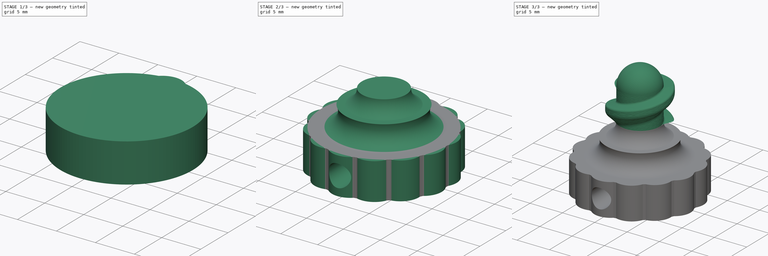
[diagram: build sequence overview — one tinted view per stage of 3, left to right]
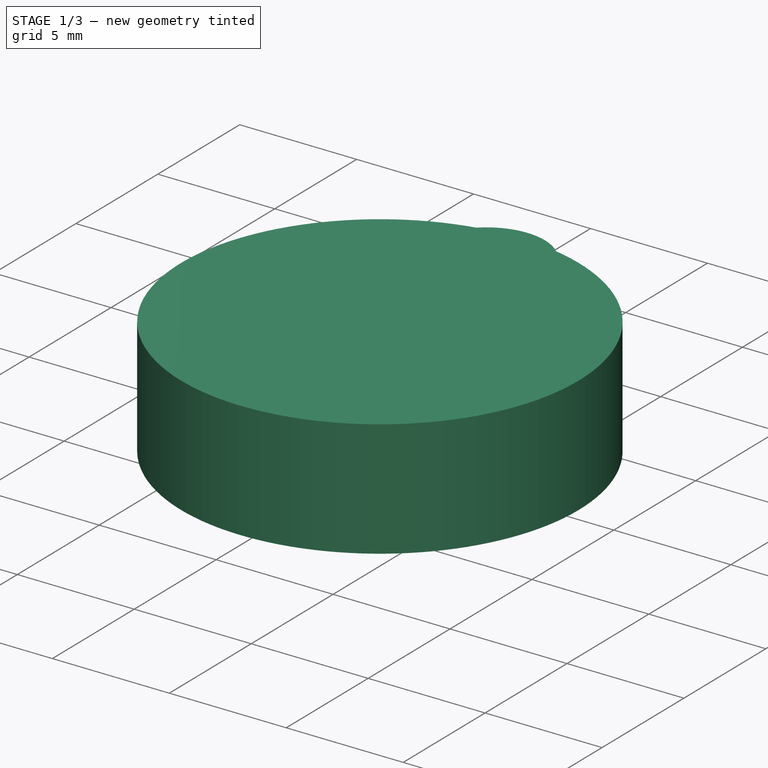
[diagram: stage 1 of 3 — iso view after this stage's code; geometry added in this stage tinted green]
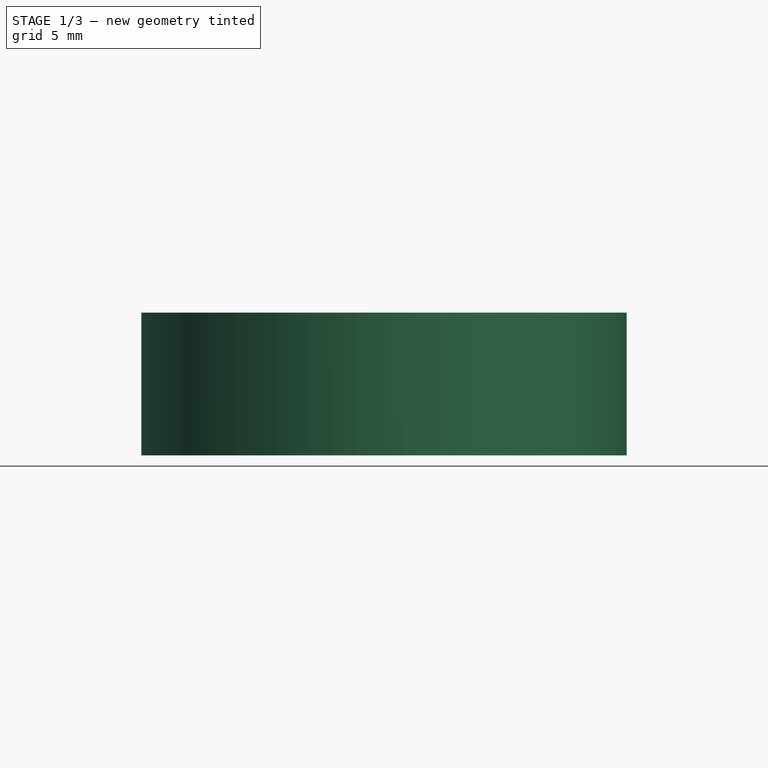
[diagram: stage 1 of 3 — front view after this stage's code; geometry added in this stage tinted green]
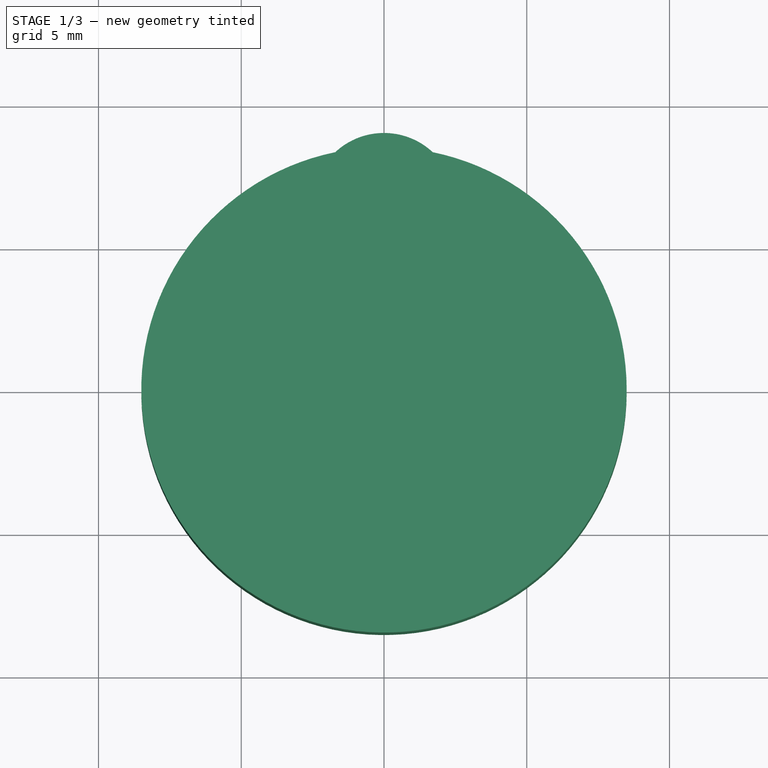
[diagram: stage 1 of 3 — top view after this stage's code; geometry added in this stage tinted green]
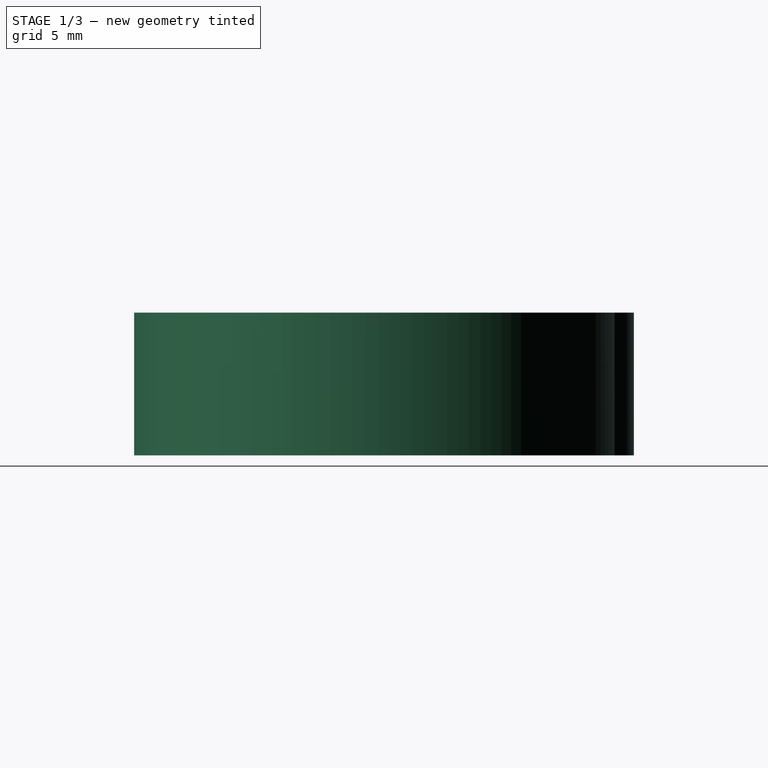
[diagram: stage 1 of 3 — right view after this stage's code; geometry added in this stage tinted green]
FCSTD DOCUMENT  (FreeCAD 0.20R29177 +426 (Git))
Label: fartbag_screw_bottle_thread
License: All rights reserved
LicenseURL: http://en.wikipedia.org/wiki/All_rights_reserved
objects: Sketcher::SketchObject×6, PartDesign::Pad×2, PartDesign::Revolution×2, PartDesign::PolarPattern×1, PartDesign::Pocket×1, Part::Part2DObjectPython×1, Part::Helix×1, PartDesign::AdditivePipe×1, PartDesign::Body×1
note: 22 computed .brp shape members not serialized (recipe doc carries the construction recipe); baked Part::Feature solids carry a one-line shape summary decoded from their .brp

FEATURE [Sketcher::SketchObject] Sketch
  FullyConstrained = true
  MapMode = 5
  Support = -> [XY_Plane]
  sketch-geometry (1):
    g0: Circle CenterX=0 CenterY=0 CenterZ=0 NormalX=0 NormalY=0 NormalZ=1 AngleXU=0 Radius=8.5
  constraints (2):
    c: Coincident(g0,g-1)
    c: Diameter(g0) = 17
FEATURE [PartDesign::Pad] Pad
  Direction = (0,0,1)
  Length = 5
  Length2 = 10
  Profile = -> Sketch
  ReferenceAxis = -> Sketch [N_Axis]
  Type = 0
FEATURE [Sketcher::SketchObject] Sketch001
  ExternalGeometry = -> [Pad]
  FullyConstrained = true
  MapMode = 5
  Placement = pos=(0,0,5) rot=(0,0,1;0rad)
  Support = -> [Pad]
  sketch-geometry (5):
    g0: Circle CenterX=0 CenterY=6.5 CenterZ=0 NormalX=0 NormalY=0 NormalZ=1 AngleXU=0 Radius=2.5
    g1: GeomPoint X=0 Y=9 Z=0
    g2: GeomPoint X=0 Y=8.5 Z=0
    g3: ArcOfCircle CenterX=0 CenterY=6.5 CenterZ=0 NormalX=0 NormalY=0 NormalZ=1 AngleXU=0 Radius=2.5 StartAngle=0.819448 EndAngle=2.32214
    g4: ArcOfCircle CenterX=0 CenterY=0 CenterZ=0 NormalX=0 NormalY=0 NormalZ=1 AngleXU=0 Radius=8.5 StartAngle=1.36865 EndAngle=1.77294
  constraints (13):
    c: PointOnObject(g0,g-2)
    c: PointOnObject(g1,g0)
    c: PointOnObject(g2,g-3)
    c: PointOnObject(g2,g-2)
    c: PointOnObject(g1,g-2)
    c: DistanceY(g2,g1) = 0.5
    c: Diameter(g0) = 5
    c: Coincident(g3,g0)
    c: PointOnObject(g3,g0)
    c: PointOnObject(g3,g-3)
    c: Coincident(g4,g-3)
    c: Coincident(g4,g3)
    c: Coincident(g4,g3)
FEATURE [PartDesign::Pad] Pad001
  BaseFeature = -> Pad
  Direction = (0,0,1)
  Length = 2.5
  Length2 = 10
  Profile = -> Sketch001
  ReferenceAxis = -> Sketch001 [N_Axis]
  Reversed = true
  Type = 3
  UpToFace = -> Pad [Face2]
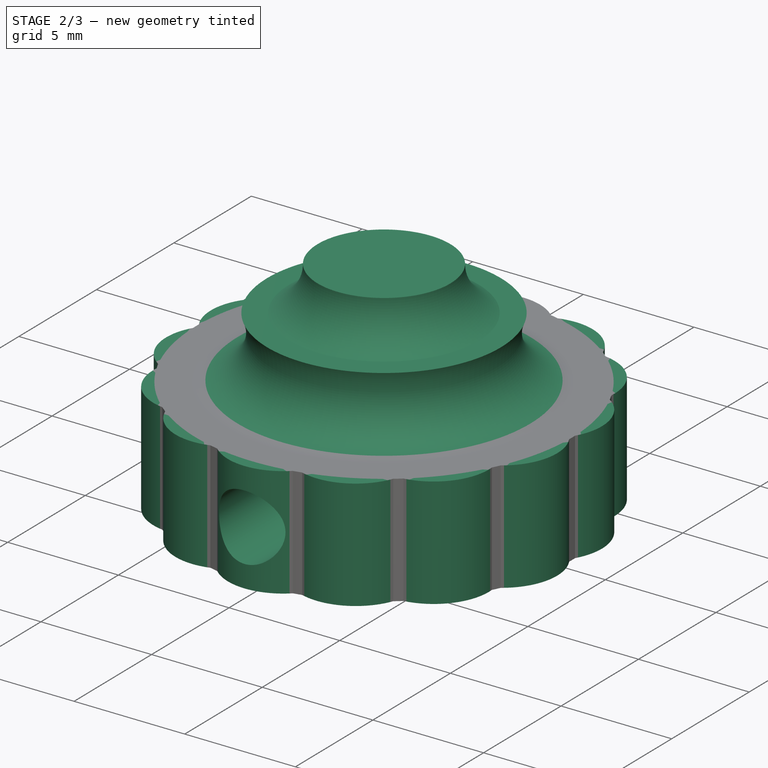
[diagram: stage 2 of 3 — iso view after this stage's code; geometry added in this stage tinted green]
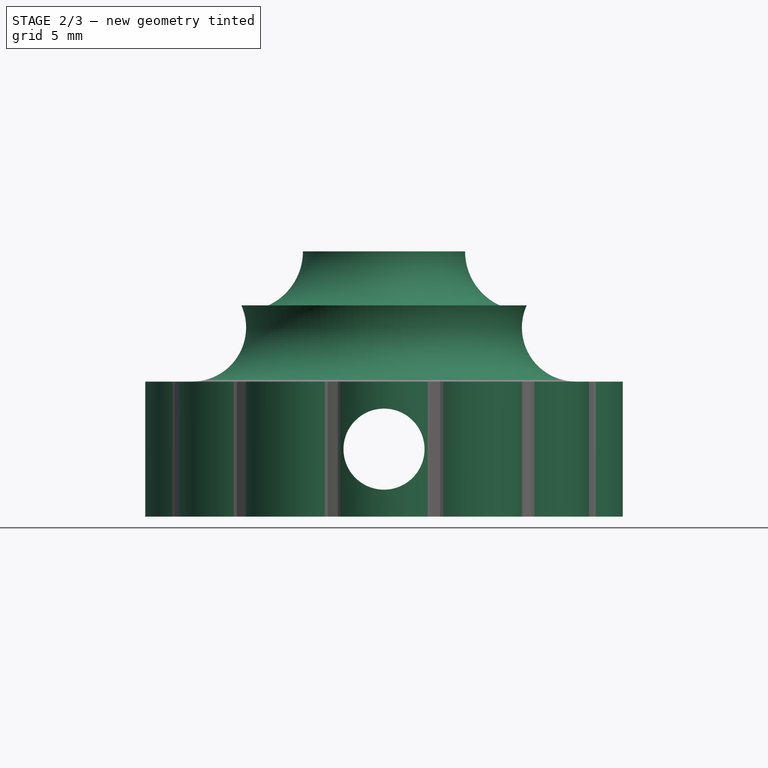
[diagram: stage 2 of 3 — front view after this stage's code; geometry added in this stage tinted green]
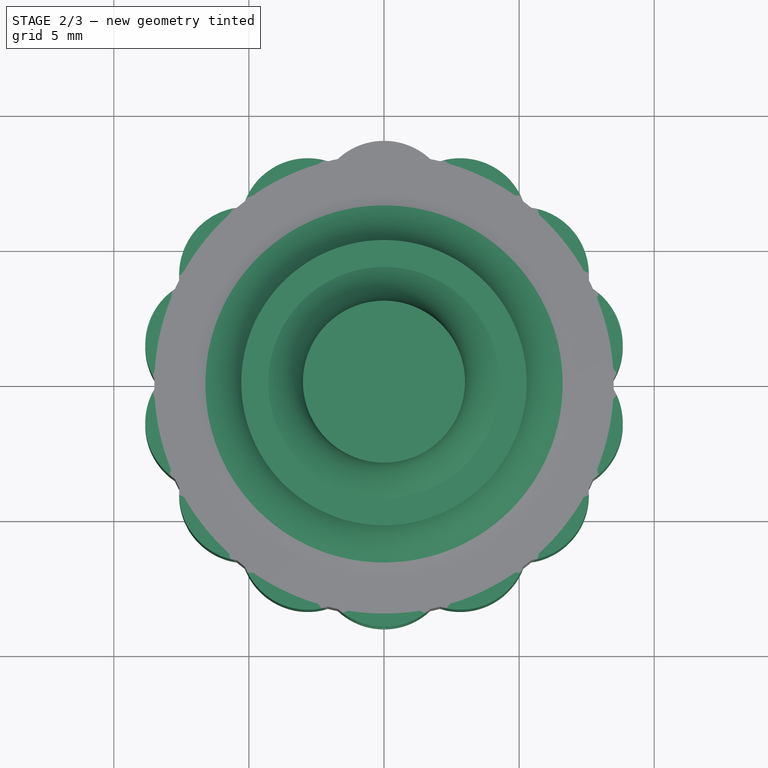
[diagram: stage 2 of 3 — top view after this stage's code; geometry added in this stage tinted green]
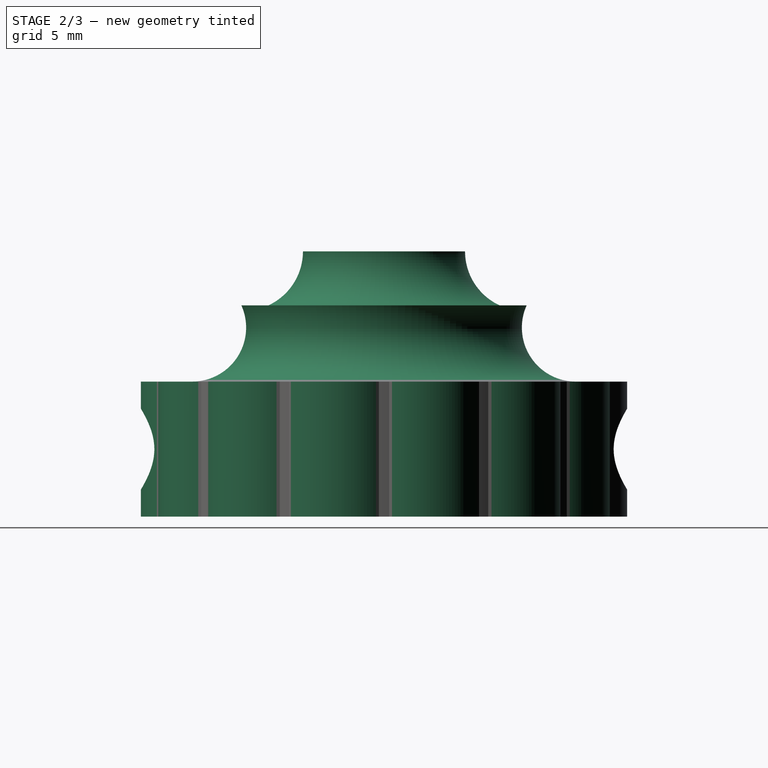
[diagram: stage 2 of 3 — right view after this stage's code; geometry added in this stage tinted green]
FEATURE [PartDesign::PolarPattern] PolarPattern
  Angle = 360
  Axis = -> Sketch001 [N_Axis]
  BaseFeature = -> Pad001
  Occurrences = 14
  Originals = -> [Pad001]
FEATURE [Sketcher::SketchObject] Sketch003
  FullyConstrained = true
  MapMode = 5
  Placement = pos=(0,0,5) rot=(0,0,1;0rad)
  Support = -> [PolarPattern]
  sketch-geometry (1):
    g0: Circle CenterX=0 CenterY=0 CenterZ=0 NormalX=0 NormalY=0 NormalZ=1 AngleXU=0 Radius=6
  constraints (2):
    c: Coincident(g0,g-1)
    c: Diameter(g0) = 12
FEATURE [Sketcher::SketchObject] Sketch004
  ExternalGeometry = -> [PolarPattern]
  FullyConstrained = true
  MapMode = 5
  Placement = pos=(0,0,0) rot=(1,0,0;1.5708rad)
  Support = -> [XZ_Plane]
  sketch-geometry (14):
    g0: LineSegment StartX=0 StartY=7.5 StartZ=0 EndX=7.10405 EndY=7.5 EndZ=0
    g1: LineSegment StartX=7.10405 StartY=5 StartZ=0 EndX=0 EndY=5 EndZ=0
    g2: LineSegment StartX=0 StartY=5 StartZ=0 EndX=0 EndY=7.5 EndZ=0
    g3: LineSegment StartX=7.10405 StartY=7.5 StartZ=0 EndX=7.10405 EndY=5 EndZ=0
    g4: LineSegment StartX=0 StartY=6.25 StartZ=0 EndX=5.25 EndY=6.25 EndZ=0
    g5: LineSegment StartX=0 StartY=5 StartZ=0 EndX=7.10405 EndY=5 EndZ=0
    g6: ArcOfCircle CenterX=7.10405 CenterY=7 CenterZ=0 NormalX=0 NormalY=0 NormalZ=1 AngleXU=0 Radius=2 StartAngle=2.7183 EndAngle=4.71239
    g7: LineSegment StartX=0 StartY=7.82153 StartZ=0 EndX=5.28057 EndY=7.82153 EndZ=0
    g8: LineSegment StartX=0 StartY=7.82153 StartZ=0 EndX=0 EndY=5 EndZ=0
    g9: LineSegment StartX=5.28057 StartY=7.82153 StartZ=0 EndX=4.28057 EndY=7.82153 EndZ=0
    g10: LineSegment StartX=0 StartY=9.82153 StartZ=0 EndX=3 EndY=9.82153 EndZ=0
    g11: LineSegment StartX=0 StartY=9.82153 StartZ=0 EndX=0 EndY=7.82153 EndZ=0
    g12: ArcOfCircle CenterX=5.20209 CenterY=9.82153 CenterZ=0 NormalX=0 NormalY=0 NormalZ=1 AngleXU=0 Radius=2.20209 StartAngle=3.14159 EndAngle=4.28062
    g13: LineSegment StartX=7.10405 StartY=7.5 StartZ=0 EndX=5.28057 EndY=7.82153 EndZ=0
  constraints (40):
    c: Coincident(g1,g2)
    c: Coincident(g2,g0)
    c: Horizontal(g0)
    c: Horizontal(g1)
    c: Vertical(g2)
    c: PointOnObject(g1,g-3)
    c: DistanceY(g1,g0) = 2.5
    c: Vertical(g3)
    c: Coincident(g1,g3)
    c: Horizontal(g4)
    c: Symmetric(g0,g1,g4)
    c: DistanceX(g4,g4) = 5.25
    c: Coincident(g5,g1)
    c: Coincident(g3,g0)
    c: DistanceX(g0,g0) = 7.10405
    c: PointOnObject(g0,g-2)
    c: PointOnObject(g7,g2)
    c: Coincident(g7,g6)
    c: Horizontal(g7)
    c: Radius(g6) = 2
    c: PointOnObject(g4,g6)
    c: Tangent(g6,g5) = -1.5708
    c: Coincident(g1,g5)
    c: Coincident(g8,g7)
    c: Coincident(g8,g5)
    c: Coincident(g9,g6)
    c: PointOnObject(g9,g7)
    c: DistanceX(g9,g9) = 1
    c: Horizontal(g10)
    c: PointOnObject(g10,g-2)
    c: DistanceX(g10,g10) = 3
    c: Coincident(g11,g10)
    c: Coincident(g11,g8)
    c: DistanceY(g11,g11) = 2
    c: Coincident(g12,g10)
    c: Coincident(g12,g9)
    c: Perpendicular(g12,g10)
    c: Coincident(g13,g0)
    c: Coincident(g13,g6)
    c: Angle(g13,g3) = 1.74533
FEATURE [Sketcher::SketchObject] Sketch006
  FullyConstrained = true
  MapMode = 5
  Placement = pos=(0,0,0) rot=(1,0,0;1.5708rad)
  Support = -> [XZ_Plane]
  sketch-geometry (2):
    g0: Circle CenterX=0 CenterY=2.5 CenterZ=0 NormalX=0 NormalY=0 NormalZ=1 AngleXU=0 Radius=1.5
    g1: GeomPoint X=0 Y=5 Z=0
  constraints (4):
    c: PointOnObject(g0,g-2)
    c: Symmetric(g1,g-1,g0)
    c: Diameter(g0) = 3
    c: DistanceY(g-1,g1) = 5
FEATURE [PartDesign::Pocket] Pocket
  BaseFeature = -> PolarPattern
  Direction = (0,1,2e-16)
  Length = 0
  Length2 = 5
  Midplane = true
  Profile = -> Sketch006
  ReferenceAxis = -> Sketch006 [N_Axis]
  Type = 1
FEATURE [PartDesign::Revolution] Revolution
  Angle = 360
  Axis = (0,-2e-16,1)
  Base = (0,0,0)
  BaseFeature = -> Pocket
  Profile = -> Sketch004
  ReferenceAxis = -> Sketch004 [V_Axis]
  Reversed = true
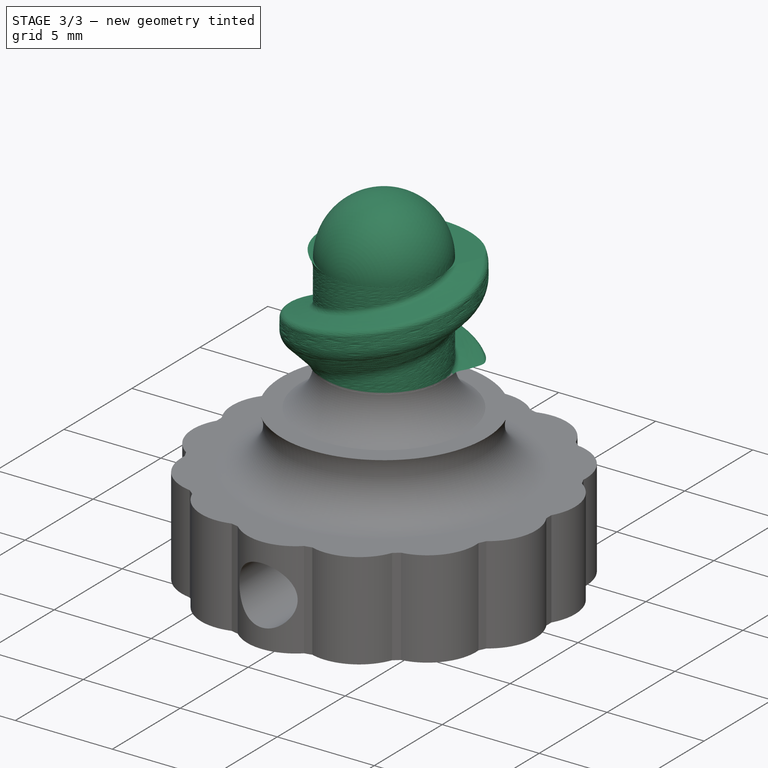
[diagram: stage 3 of 3 — iso view after this stage's code; geometry added in this stage tinted green]
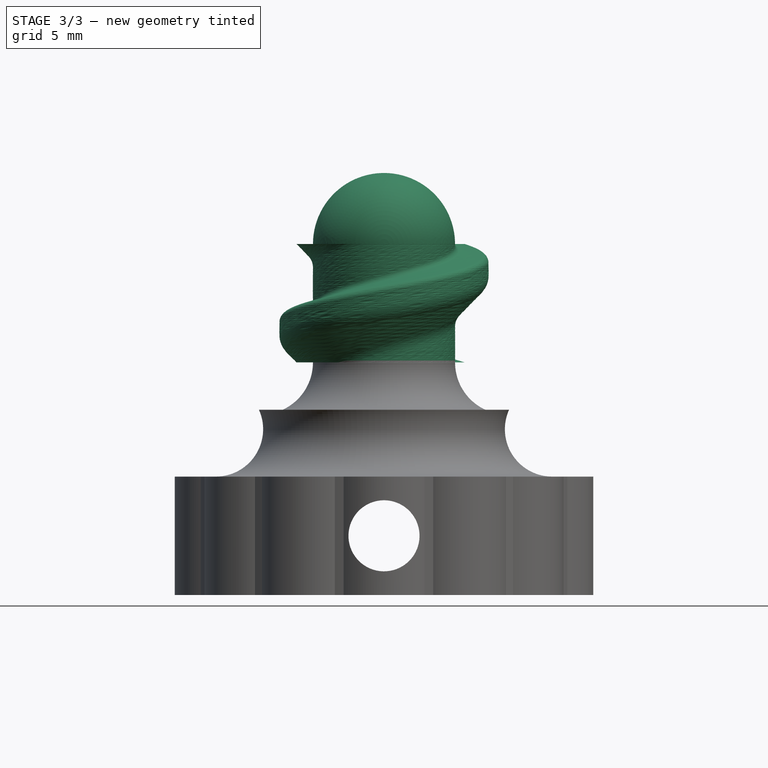
[diagram: stage 3 of 3 — front view after this stage's code; geometry added in this stage tinted green]
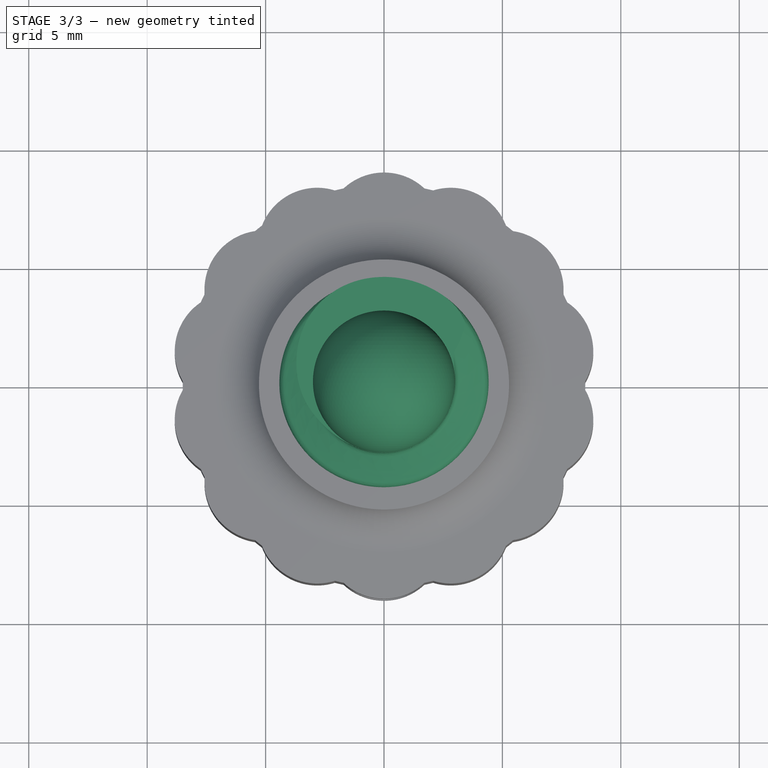
[diagram: stage 3 of 3 — top view after this stage's code; geometry added in this stage tinted green]
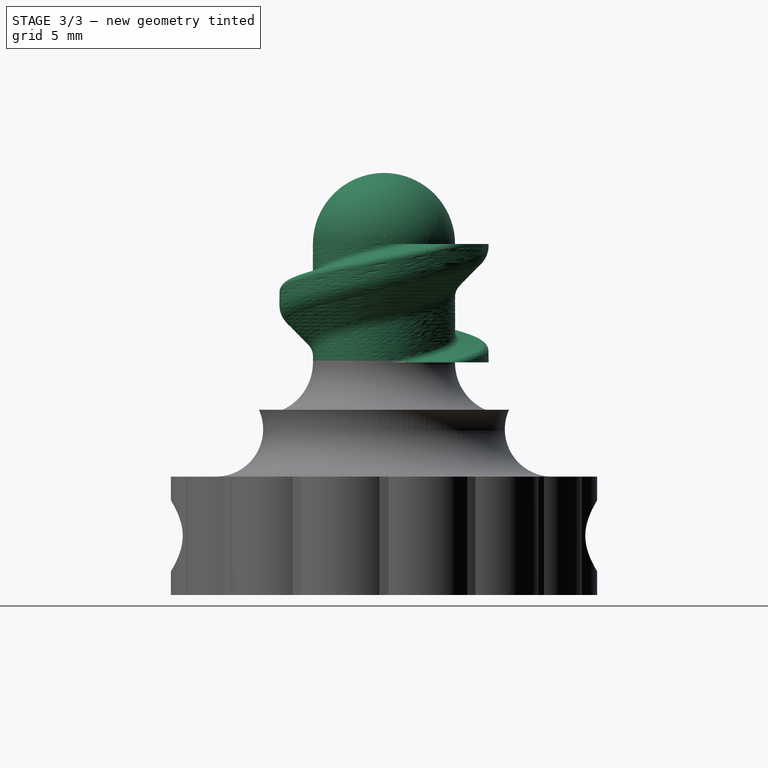
[diagram: stage 3 of 3 — right view after this stage's code; geometry added in this stage tinted green]
FEATURE [Part::Part2DObjectPython] Bottle_M_ThreadProfile  # Draft 2D object (typed FeaturePython)
  Area = 41.1253
  Closed = true
  Continuity = C2
  Height = 5
  Helix = Helix
  Instructions = Expand this with the ... button to view instructions | Sweep this object along a helix of the same pitch to produce your thread. | It is recommended to make the helix in the ThreadProfile workbench. | If there is an active Body the ThreadProfile object will be put into it.,If not it can be dragged and dropped into the body later. | If there is an active Body when the helix is made there will be made a ShapeBinder for it | For internal threads you will need to cut the Sweep object out of a cylinder, or if using Part Design sweep it as a Subtractive Pipe. | Always use Frenet mode | I have provided some presets, but it is possible there could be some errors.  Double check for mission critical applications. | Also, the tolerances might be different from what you wish to have.  I believe the internal minor diameters are all minimum and the external are all maximum.
  InternalOrExternal = 1
  MakeFace = true
  MapMode = 5
  MinorDiameter = 6
  Parameterization = 1
  Pitch = 5
  Placement = pos=(0,-2.2e-15,9.82153) rot=(0,0,1;0rad)
  Points = (120) [(2.99622,0.157244,0),(2.98787,0.314478,0),(2.97704,0.472183,0),(2.96507,0.631149,0),(2.9524,0.792246,0),(2.94182,0.957278,0),(2.94093,1.13064,0),+113 more]
  Presets = 0
  Quality = 6
  Support = -> [Revolution]
  ThreadCount = 1
  Variants = 0
  Version = 1.85
  external2S_data = [-0.00461051,-0.00886426,-0.0128148,-0.0165028,-0.0199596,-0.0232105,-0.0262759,-0.0291725,-0.0319145,-0.0345137,-0.0369805,-0.0393235,-0.0415505,-0.0436681,-0.0456823,-0.0475981,-0.0494204,-0.0511532,-0.0528003,-0.0543649,-0.0558502,+698 more]
  external3S_data = [-0.00677828,-0.0128149,-0.0182584,-0.0232106,-0.0277444,-0.0319145,-0.0357632,-0.0393236,-0.0426227,-0.0456823,-0.0485208,-0.0511533,-0.0535928,-0.0558503,-0.0579353,-0.059856,-0.0616195,-0.0632319,-0.0646984,-0.0660239,-0.0672123,+698 more]
  external45_data = [-0.00137363,-0.00271738,-0.00403219,-0.00531893,-0.00657844,-0.00781148,-0.00901878,-0.010201,-0.0113589,-0.012493,-0.0136039,-0.0146921,-0.0157583,-0.0168028,-0.0178261,-0.0188288,-0.0198112,-0.0207738,-0.0217169,-0.0226409,-0.0235462,+698 more]
  external_data = [6.8683e-05,0.000137366,0.000212133,0.000297079,0.000434727,0.000654671,0.000874565,0.00109436,0.00135915,0.00172112,0.00208281,0.0024438,0.00285056,0.00336131,0.0038717,0.00438141,0.0049559,0.00562874,0.00630075,0.00697193,0.00775661,+698 more]
  internal2S_data = [0,0,0,0,0,0,0,0,0,0,0,0,0,0,0,0,0,0,0,0,0,0,0,0,0,0,0,0,0,0,0,0,0,0,0,0,0,0,0,0,0,0,0,0,0,0,0,0,0,0,0,0,0,0,0,0,0,0,0,0,0,0,0,0,0,0,0,0,0,0,0,0,0,0,0,0,0,0,0,0,0,0,0,0,0,0,0,0,0,0,0.00481128,0.00962256,0.0144338,0.0192451,0.0240564,+624 more]
  internal3S_data = [0,0,0,0,0,0,0,0,0,0,0,0,0,0,0,0,0,0,0,0,0,0,0,0,0,0,0,0,0,0,0,0,0,0,0,0,0,0,0,0,0,0,0,0,0,0,0,0,0,0,0,0,0,0,0,0,0,0,0,0,0.00721688,0.0144338,0.0216506,0.0288675,0.0360844,0.0433013,0.0505181,0.057735,0.0649519,0.0721688,0.0793857,0.0866025,+647 more]
  internal45_data = [0,0,0,0,0,0,0,0,0,0,0,0,0,0,0,0,0,0,0,0,0,0,0,0,0,0,0,0,0,0,0,0,0,0,0,0,0,0,0,0,0,0,0,0,0,0,0,0,0,0,0,0,0,0,0,0,0,0,0,0,0,0,0,0,0,0,0,0,0,0,0,0,0,0,0,0,0,0,0,0,0,0,0,0,0,0,0,0,0,0,0,0,0,0,0,0,0,0,0,0,0,0,0,0,0,0,0,0,0,0,0,0,0,0,0,0,0,0,0,0,+599 more]
  internal_data = [6.8683e-05,0.000137366,0.000212133,0.000297079,0.000434727,0.000654671,0.000874565,0.00109436,0.00135915,0.00172112,0.00208281,0.0024438,0.00285056,0.00336131,0.0038717,0.00438141,0.0049559,0.00562874,0.00630075,0.00697193,0.00775661,+698 more]
  preset_names = Bottle presets | 13-SP415(M) 2.1166666666666667 | 15-SP415(M) 2.1166666666666667 | 18-SP400(M) 3.175 | 20-SP400(M) 3.175 | 22-SP400(M) 3.175 | 24-SP400(M) 3.175 | 28-SP400(M) 4.233333333333333 | 30-SP400(M) 4.233333333333333 | 33-SP400(M) 4.233333333333333 | 35-SP400(M) 4.233333333333333 | 38-SP400(M) 4.233333333333333 | 40-SP400(M) 4.233333333333333 | 43-SP400(M) 4.233333333333333 | 45-SP400(M) 4.233333333333333 | 48-SP400(M) 4.233333333333333 | 51-SP400(M) 4.233333333333333 | 53-SP400(M) 4.233333333333333 | 58-SP400(M) 4.233333333333333 | 60-SP400(M) 4.233333333333333 | 63-SP400(M) 4.233333333333333 | 66-SP400(M) 4.233333333333333 | 70-SP400(M) 4.233333333333333 | 75-SP400(M) 4.233333333333333 | 77-SP400(M) 4.233333333333333 | 83-SP400(M) 5.08 | 89-SP400(M) 5.08 | 100-SP400(M) 5.08 | 110-SP400(M) 5.08 | 120-SP400(M) 5.08
  presets_data = [0,0,0,2.11667,11.53,11.78,2.11667,13.23,13.48,3.175,15.75,16,3.175,17.75,18,3.175,19.76,20.01,3.175,21.74,21.99,4.23333,25.25,25.5,4.23333,26.23,26.48,4.23333,29.74,29.99,4.23333,32.25,32.5,4.23333,35.1,35.35,4.23333,37.75,38,4.23333,39.62,+49 more]
FEATURE [Part::Helix] Helix
  Angle = 0
  AttacherType = Attacher::AttachEngine3D
  Height = 5
  LocalCoord = 0
  MapMode = 5
  Pitch = 5
  Placement = pos=(0,-2.2e-15,9.82153) rot=(0,0,1;0rad)
  Radius = 1
  SegmentLength = 0
  Style = 0
  Support = -> [Revolution]
  expr: AttachmentOffset = Bottle_M_ThreadProfile.AttachmentOffset
  expr: Height = Bottle_M_ThreadProfile.ThreadCount * Bottle_M_ThreadProfile.Pitch
  expr: MapMode = Bottle_M_ThreadProfile.MapMode
  expr: MapPathParameter = Bottle_M_ThreadProfile.MapPathParameter
  expr: MapReversed = Bottle_M_ThreadProfile.MapReversed
  expr: Pitch = Bottle_M_ThreadProfile.Pitch
  expr: Support = Bottle_M_ThreadProfile.Support
FEATURE [PartDesign::AdditivePipe] AdditivePipe
  AuxilleryCurvelinear = true
  AuxillerySpineTangent = false
  BaseFeature = -> Revolution
  Binormal = (0,0,0)
  Mode = 2
  Profile = -> Bottle_M_ThreadProfile
  Spine = -> Helix
  SpineTangent = false
  Transformation = 0
  Transition = 0
FEATURE [Sketcher::SketchObject] Sketch005
  FullyConstrained = true
  MapMode = 5
  Placement = pos=(1.10304e-05,1.33e-13,14.8215) rot=(0,1,0;1e-06rad)
  Support = -> [AdditivePipe]
  sketch-geometry (3):
    g0: Circle CenterX=0 CenterY=0 CenterZ=0 NormalX=0 NormalY=0 NormalZ=1 AngleXU=0 Radius=3
    g1: LineSegment StartX=0 StartY=3 StartZ=0 EndX=0 EndY=-3 EndZ=0
    g2: ArcOfCircle CenterX=0 CenterY=0 CenterZ=0 NormalX=0 NormalY=0 NormalZ=1 AngleXU=0 Radius=3 StartAngle=4.71239 EndAngle=7.85398
  constraints (10):
    c: Coincident(g0,g-1)
    c: Diameter(g0) = 6
    c: PointOnObject(g1,g0)
    c: PointOnObject(g1,g0)
    c: Vertical(g1)
    c: PointOnObject(g1,g-2)
    c: Coincident(g2,g0)
    c: PointOnObject(g2,g-2)
    c: PointOnObject(g2,g-2)
    c: PointOnObject(g2,g0)
FEATURE [PartDesign::Revolution] Revolution001
  Angle = 180
  Axis = (0,1,-9e-15)
  Base = (1.10304e-05,1.33e-13,14.8215)
  BaseFeature = -> AdditivePipe
  Profile = -> Sketch005
  ReferenceAxis = -> Sketch005 [V_Axis]
  Reversed = true
FEATURE [PartDesign::Body] Body
  Group = -> [Sketch,Pad,Sketch001,Pad001,PolarPattern,Pocket,Sketch003,Revolution,Bottle_M_ThreadProfile,Helix,Sketch004,AdditivePipe,Sketch005,Revolution001,Sketch006]
  Origin = -> Origin
  Tip = -> Revolution001
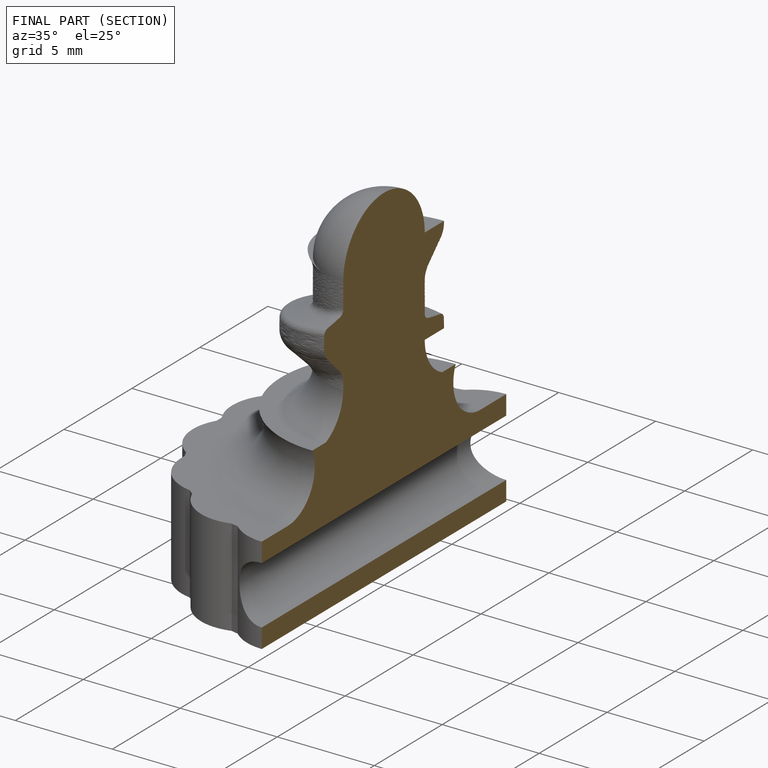
[diagram: finished part — half-section view (interior)]
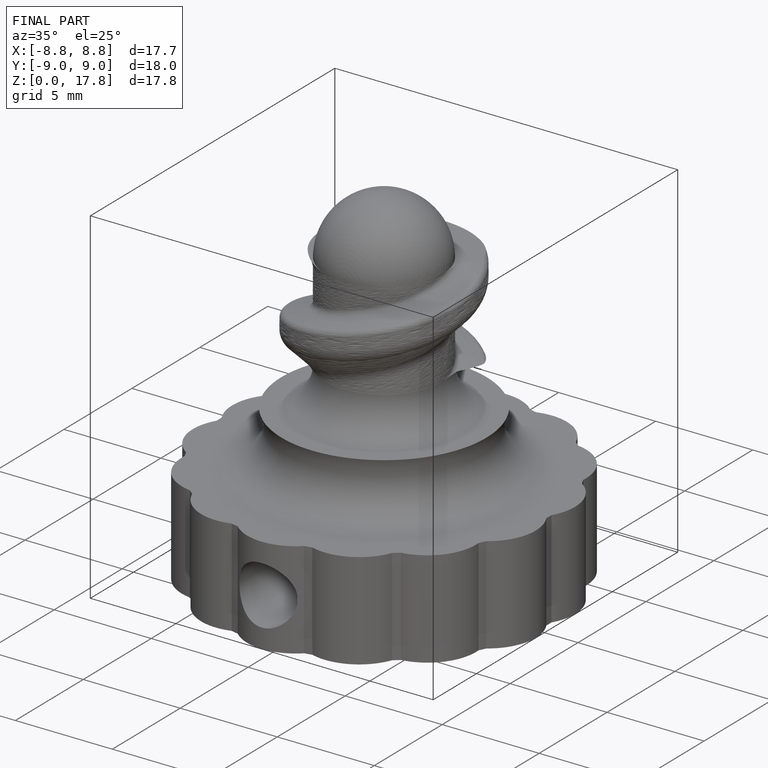
[diagram: finished part — iso view with bounding-box wireframe]
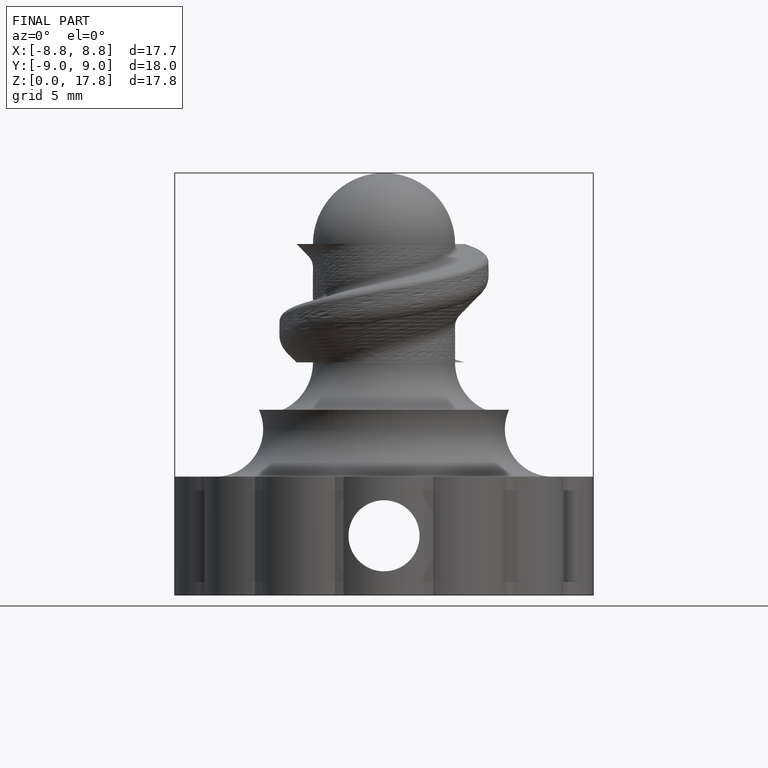
[diagram: finished part — front view with bounding-box wireframe]
